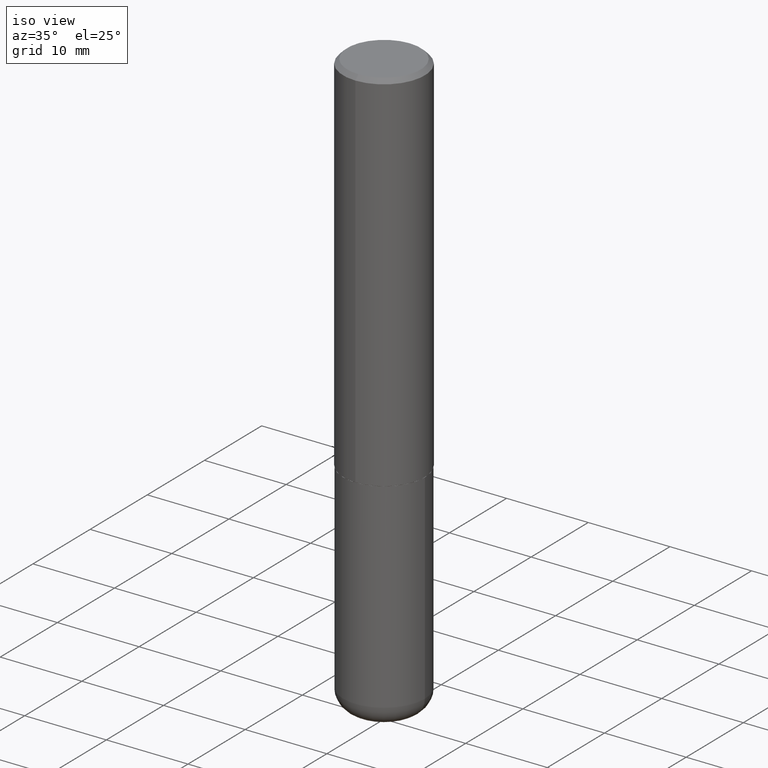
[diagram: clean part render]
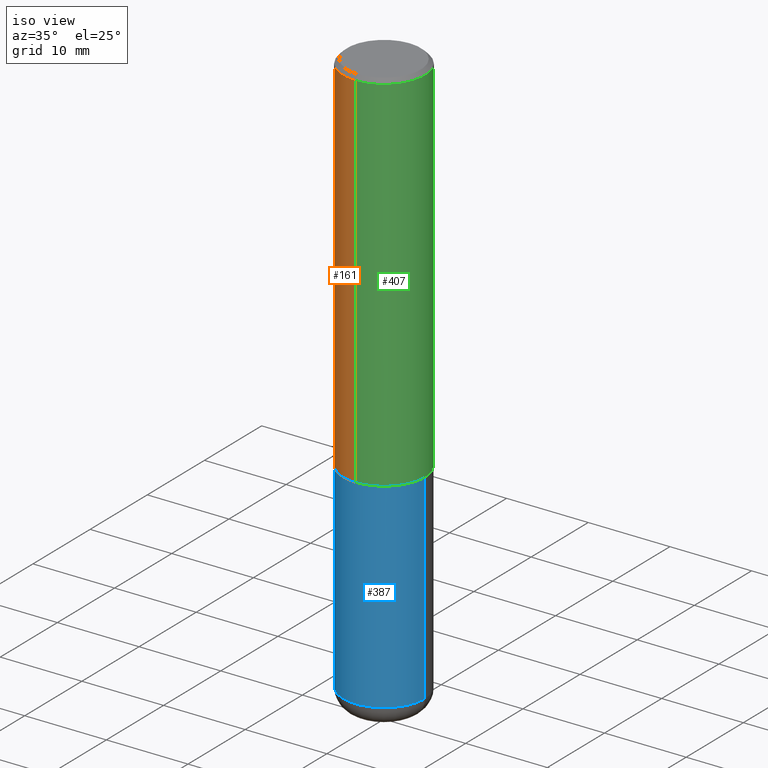
[diagram: same view with three faces highlighted in distinct colors, each labeled with its STEP entity id]
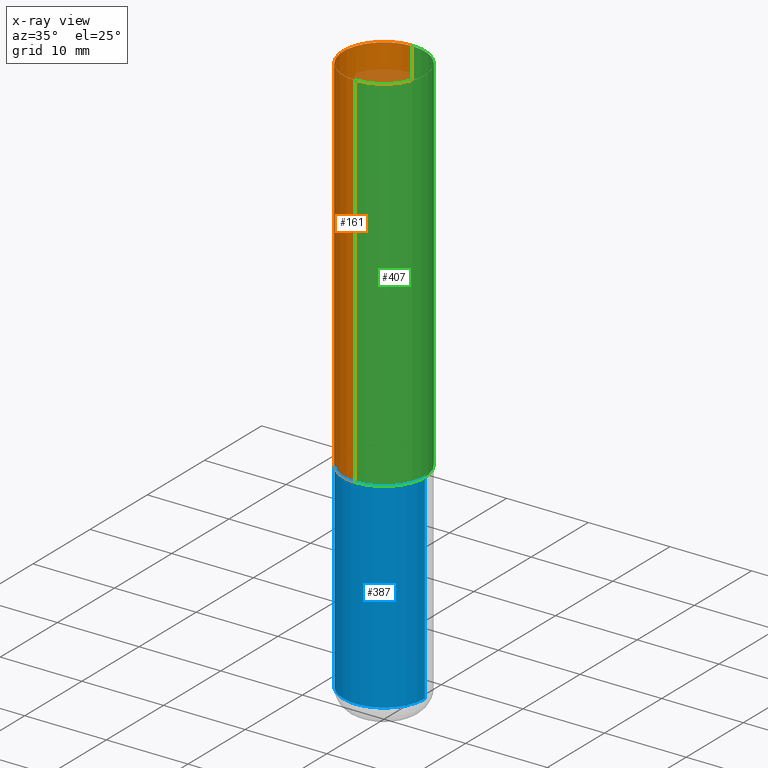
[diagram: x-ray of the same camera — body ghosted, the three highlighted faces saturated]
A machine part, iso view with three faces highlighted in distinct colors.
The next image is the same camera in x-ray (body ghosted, the three faces saturated) — at least one of them is partly hidden behind the body in this view.
Their STEP definitions:

[orange] entity #161 — the highlighted cylindrical surface (partial cylindrical patch) has radius 5 mm, axis along (-0, 0, 1).
#7 = CARTESIAN_POINT ( 'NONE',  ( 4.332805681799319957E-29, -6.177923161224234260E-15, -1.770599999999999730 ) ) ;
#15 = AXIS2_PLACEMENT_3D ( 'NONE', #125, #227, #357 ) ;
#20 = CARTESIAN_POINT ( 'NONE',  ( -1.350489030861325429E-15, -0.1968500000000000805, -0.01999999999999935510 ) ) ;
#25 = DIRECTION ( 'NONE',  ( -2.447083294814932914E-29, 3.489169299234291357E-15, 1.000000000000000000 ) ) ;
#32 = AXIS2_PLACEMENT_3D ( 'NONE', #62, #367, #95 ) ;
#46 = VERTEX_POINT ( 'NONE', #20 ) ;
#59 = VECTOR ( 'NONE', #169, 39.37007874015748143 ) ;
#62 = CARTESIAN_POINT ( 'NONE',  ( 4.894166589629877283E-31, -6.978338598468595286E-17, -0.02000000000000004205 ) ) ;
#65 = ORIENTED_EDGE ( 'NONE', *, *, #369, .F. ) ;
#67 = CIRCLE ( 'NONE', #311, 0.1968500000000001915 ) ;
#79 = EDGE_CURVE ( 'NONE', #185, #46, #316, .T. ) ;
#81 = CARTESIAN_POINT ( 'NONE',  ( -1.374596203102542200E-15, -0.1968500000000001082, 6.868429765542706433E-16 ) ) ;
#95 = DIRECTION ( 'NONE',  ( -6.982962677686265133E-15, -1.000000000000000000, 3.491137977679279424E-15 ) ) ;
#125 = CARTESIAN_POINT ( 'NONE',  ( 0.000000000000000000, 0.000000000000000000, 0.000000000000000000 ) ) ;
#159 = ORIENTED_EDGE ( 'NONE', *, *, #377, .F. ) ;
#161 = ADVANCED_FACE ( 'NONE', ( #258 ), #191, .T. ) ;
#167 = CARTESIAN_POINT ( 'NONE',  ( 1.374596203102542003E-15, 0.1968499999999999417, -0.02000000000000072900 ) ) ;
#169 = DIRECTION ( 'NONE',  ( -2.447083294814932914E-29, 3.489169299234291357E-15, 1.000000000000000000 ) ) ;
#185 = VERTEX_POINT ( 'NONE', #192 ) ;
#191 = CYLINDRICAL_SURFACE ( 'NONE', #15, 0.1968500000000001082 ) ;
#192 = CARTESIAN_POINT ( 'NONE',  ( -1.374596203102499207E-15, -0.1968500000000063532, -1.770599999999998841 ) ) ;
#193 = CIRCLE ( 'NONE', #32, 0.1968500000000000250 ) ;
#227 = DIRECTION ( 'NONE',  ( -2.447083294814932914E-29, 3.489169299234290962E-15, 1.000000000000000000 ) ) ;
#258 = FACE_OUTER_BOUND ( 'NONE', #332, .T. ) ;
#267 = ORIENTED_EDGE ( 'NONE', *, *, #79, .T. ) ;
#268 = DIRECTION ( 'NONE',  ( -6.982962677686265133E-15, -1.000000000000000000, 4.163344669033670901E-15 ) ) ;
#271 = VERTEX_POINT ( 'NONE', #380 ) ;
#304 = ORIENTED_EDGE ( 'NONE', *, *, #416, .T. ) ;
#311 = AXIS2_PLACEMENT_3D ( 'NONE', #7, #331, #268 ) ;
#316 = LINE ( 'NONE', #81, #346 ) ;
#331 = DIRECTION ( 'NONE',  ( -2.447083294814932914E-29, 3.489169299234290962E-15, 1.000000000000000000 ) ) ;
#332 = EDGE_LOOP ( 'NONE', ( #159, #304, #267, #65 ) ) ;
#346 = VECTOR ( 'NONE', #25, 39.37007874015748143 ) ;
#357 = DIRECTION ( 'NONE',  ( -6.982962677686265922E-15, -1.000000000000000000, 3.489169299234291357E-15 ) ) ;
#363 = VERTEX_POINT ( 'NONE', #167 ) ;
#367 = DIRECTION ( 'NONE',  ( -2.447083294814932914E-29, 3.489169299234290962E-15, 1.000000000000000000 ) ) ;
#369 = EDGE_CURVE ( 'NONE', #363, #46, #193, .T. ) ;
#377 = EDGE_CURVE ( 'NONE', #271, #363, #399, .T. ) ;
#380 = CARTESIAN_POINT ( 'NONE',  ( 1.398703375343780073E-15, 0.1968499999999940020, -1.770600000000000396 ) ) ;
#396 = CARTESIAN_POINT ( 'NONE',  ( 1.398703375343757788E-15, 0.1968500000000001082, -6.868429765542706433E-16 ) ) ;
#399 = LINE ( 'NONE', #396, #59 ) ;
#416 = EDGE_CURVE ( 'NONE', #271, #185, #67, .T. ) ;

[blue] entity #387 — the highlighted cylindrical surface (partial cylindrical patch) has radius 5 mm, axis along (-0, 0, 1).
#11 = DIRECTION ( 'NONE',  ( 1.000000000000000000, -6.982962677686266711E-15, 4.876176775795935793E-29 ) ) ;
#12 = VERTEX_POINT ( 'NONE', #279 ) ;
#13 = FACE_OUTER_BOUND ( 'NONE', #137, .T. ) ;
#27 = CIRCLE ( 'NONE', #259, 0.1968500000000000250 ) ;
#34 = LINE ( 'NONE', #89, #157 ) ;
#40 = VERTEX_POINT ( 'NONE', #352 ) ;
#54 = DIRECTION ( 'NONE',  ( -2.445468806185136877E-29, 3.491481338843145188E-15, 1.000000000000000000 ) ) ;
#66 = CYLINDRICAL_SURFACE ( 'NONE', #144, 0.1968499999999999694 ) ;
#82 = AXIS2_PLACEMENT_3D ( 'NONE', #232, #203, #294 ) ;
#87 = CARTESIAN_POINT ( 'NONE',  ( 0.1968500000000001915, -1.092798744244515797E-14, -2.736199999999999743 ) ) ;
#89 = CARTESIAN_POINT ( 'NONE',  ( 0.1968499999999999694, -1.374596203102541411E-15, 9.598753983154298056E-30 ) ) ;
#96 = DIRECTION ( 'NONE',  ( -2.445468806185136877E-29, 3.491481338843145188E-15, 1.000000000000000000 ) ) ;
#105 = CARTESIAN_POINT ( 'NONE',  ( -0.1968499999999999694, 1.398703375343756999E-15, -9.682923725166782276E-30 ) ) ;
#126 = EDGE_CURVE ( 'NONE', #40, #231, #27, .T. ) ;
#137 = EDGE_LOOP ( 'NONE', ( #368, #335, #168, #345 ) ) ;
#144 = AXIS2_PLACEMENT_3D ( 'NONE', #162, #392, #11 ) ;
#157 = VECTOR ( 'NONE', #54, 39.37007874015748143 ) ;
#162 = CARTESIAN_POINT ( 'NONE',  ( 0.000000000000000000, 0.000000000000000000, 0.000000000000000000 ) ) ;
#168 = ORIENTED_EDGE ( 'NONE', *, *, #301, .T. ) ;
#173 = CARTESIAN_POINT ( 'NONE',  ( -0.1968499999999999694, -6.470746414274807600E-15, -1.771599999999999842 ) ) ;
#203 = DIRECTION ( 'NONE',  ( -2.445468806185136597E-29, 3.491481338843145583E-15, 1.000000000000000000 ) ) ;
#214 = CARTESIAN_POINT ( 'NONE',  ( 6.691291747483769253E-29, -9.553391239342614783E-15, -2.736199999999999743 ) ) ;
#231 = VERTEX_POINT ( 'NONE', #87 ) ;
#232 = CARTESIAN_POINT ( 'NONE',  ( 4.332392537037587642E-29, -6.185508339894515992E-15, -1.771599999999999842 ) ) ;
#259 = AXIS2_PLACEMENT_3D ( 'NONE', #214, #350, #404 ) ;
#279 = CARTESIAN_POINT ( 'NONE',  ( 0.1968499999999999694, -7.560104542997057600E-15, -1.771599999999999842 ) ) ;
#294 = DIRECTION ( 'NONE',  ( 1.000000000000000000, -6.982962677686265133E-15, 0.000000000000000000 ) ) ;
#301 = EDGE_CURVE ( 'NONE', #231, #12, #34, .T. ) ;
#330 = VECTOR ( 'NONE', #96, 39.37007874015748143 ) ;
#333 = EDGE_CURVE ( 'NONE', #40, #397, #334, .T. ) ;
#334 = LINE ( 'NONE', #105, #330 ) ;
#335 = ORIENTED_EDGE ( 'NONE', *, *, #126, .T. ) ;
#345 = ORIENTED_EDGE ( 'NONE', *, *, #381, .F. ) ;
#347 = CIRCLE ( 'NONE', #82, 0.1968499999999999694 ) ;
#350 = DIRECTION ( 'NONE',  ( -2.445468806185136597E-29, 3.491481338843145583E-15, 1.000000000000000000 ) ) ;
#352 = CARTESIAN_POINT ( 'NONE',  ( -0.1968500000000001915, -8.154687863998856206E-15, -2.736199999999999743 ) ) ;
#368 = ORIENTED_EDGE ( 'NONE', *, *, #333, .F. ) ;
#381 = EDGE_CURVE ( 'NONE', #397, #12, #347, .T. ) ;
#387 = ADVANCED_FACE ( 'NONE', ( #13 ), #66, .T. ) ;
#392 = DIRECTION ( 'NONE',  ( -2.445468806185136597E-29, 3.491481338843145583E-15, 1.000000000000000000 ) ) ;
#397 = VERTEX_POINT ( 'NONE', #173 ) ;
#404 = DIRECTION ( 'NONE',  ( 1.000000000000000000, -6.982962677686267499E-15, 0.000000000000000000 ) ) ;

[green] entity #407 — the highlighted cylindrical surface (partial cylindrical patch) has radius 5 mm, axis along (-0, 0, 1).
#2 = CIRCLE ( 'NONE', #71, 0.1968500000000001915 ) ;
#16 = ORIENTED_EDGE ( 'NONE', *, *, #79, .F. ) ;
#20 = CARTESIAN_POINT ( 'NONE',  ( -1.350489030861325429E-15, -0.1968500000000000805, -0.01999999999999935510 ) ) ;
#25 = DIRECTION ( 'NONE',  ( -2.447083294814932914E-29, 3.489169299234291357E-15, 1.000000000000000000 ) ) ;
#37 = ORIENTED_EDGE ( 'NONE', *, *, #377, .T. ) ;
#46 = VERTEX_POINT ( 'NONE', #20 ) ;
#59 = VECTOR ( 'NONE', #169, 39.37007874015748143 ) ;
#71 = AXIS2_PLACEMENT_3D ( 'NONE', #281, #84, #182 ) ;
#79 = EDGE_CURVE ( 'NONE', #185, #46, #316, .T. ) ;
#81 = CARTESIAN_POINT ( 'NONE',  ( -1.374596203102542200E-15, -0.1968500000000001082, 6.868429765542706433E-16 ) ) ;
#84 = DIRECTION ( 'NONE',  ( -2.447083294814932914E-29, 3.489169299234290962E-15, 1.000000000000000000 ) ) ;
#101 = FACE_OUTER_BOUND ( 'NONE', #266, .T. ) ;
#132 = CYLINDRICAL_SURFACE ( 'NONE', #398, 0.1968500000000001082 ) ;
#138 = EDGE_CURVE ( 'NONE', #185, #271, #2, .T. ) ;
#155 = EDGE_CURVE ( 'NONE', #46, #363, #220, .T. ) ;
#167 = CARTESIAN_POINT ( 'NONE',  ( 1.374596203102542003E-15, 0.1968499999999999417, -0.02000000000000072900 ) ) ;
#169 = DIRECTION ( 'NONE',  ( -2.447083294814932914E-29, 3.489169299234291357E-15, 1.000000000000000000 ) ) ;
#182 = DIRECTION ( 'NONE',  ( -6.982962677686265133E-15, -1.000000000000000000, 4.163344669033670901E-15 ) ) ;
#185 = VERTEX_POINT ( 'NONE', #192 ) ;
#189 = CARTESIAN_POINT ( 'NONE',  ( 4.894166589629877283E-31, -6.978338598468595286E-17, -0.02000000000000004205 ) ) ;
#192 = CARTESIAN_POINT ( 'NONE',  ( -1.374596203102499207E-15, -0.1968500000000063532, -1.770599999999998841 ) ) ;
#195 = CARTESIAN_POINT ( 'NONE',  ( 0.000000000000000000, 0.000000000000000000, 0.000000000000000000 ) ) ;
#220 = CIRCLE ( 'NONE', #236, 0.1968500000000000250 ) ;
#229 = DIRECTION ( 'NONE',  ( -2.447083294814932914E-29, 3.489169299234290962E-15, 1.000000000000000000 ) ) ;
#236 = AXIS2_PLACEMENT_3D ( 'NONE', #189, #418, #285 ) ;
#240 = ORIENTED_EDGE ( 'NONE', *, *, #155, .F. ) ;
#266 = EDGE_LOOP ( 'NONE', ( #366, #37, #240, #16 ) ) ;
#271 = VERTEX_POINT ( 'NONE', #380 ) ;
#281 = CARTESIAN_POINT ( 'NONE',  ( 4.332805681799319957E-29, -6.177923161224234260E-15, -1.770599999999999730 ) ) ;
#285 = DIRECTION ( 'NONE',  ( -6.982962677686265133E-15, -1.000000000000000000, 3.491137977679279424E-15 ) ) ;
#298 = DIRECTION ( 'NONE',  ( -6.982962677686265922E-15, -1.000000000000000000, 3.489169299234291357E-15 ) ) ;
#316 = LINE ( 'NONE', #81, #346 ) ;
#346 = VECTOR ( 'NONE', #25, 39.37007874015748143 ) ;
#363 = VERTEX_POINT ( 'NONE', #167 ) ;
#366 = ORIENTED_EDGE ( 'NONE', *, *, #138, .T. ) ;
#377 = EDGE_CURVE ( 'NONE', #271, #363, #399, .T. ) ;
#380 = CARTESIAN_POINT ( 'NONE',  ( 1.398703375343780073E-15, 0.1968499999999940020, -1.770600000000000396 ) ) ;
#396 = CARTESIAN_POINT ( 'NONE',  ( 1.398703375343757788E-15, 0.1968500000000001082, -6.868429765542706433E-16 ) ) ;
#398 = AXIS2_PLACEMENT_3D ( 'NONE', #195, #229, #298 ) ;
#399 = LINE ( 'NONE', #396, #59 ) ;
#407 = ADVANCED_FACE ( 'NONE', ( #101 ), #132, .T. ) ;
#418 = DIRECTION ( 'NONE',  ( -2.447083294814932914E-29, 3.489169299234290962E-15, 1.000000000000000000 ) ) ;